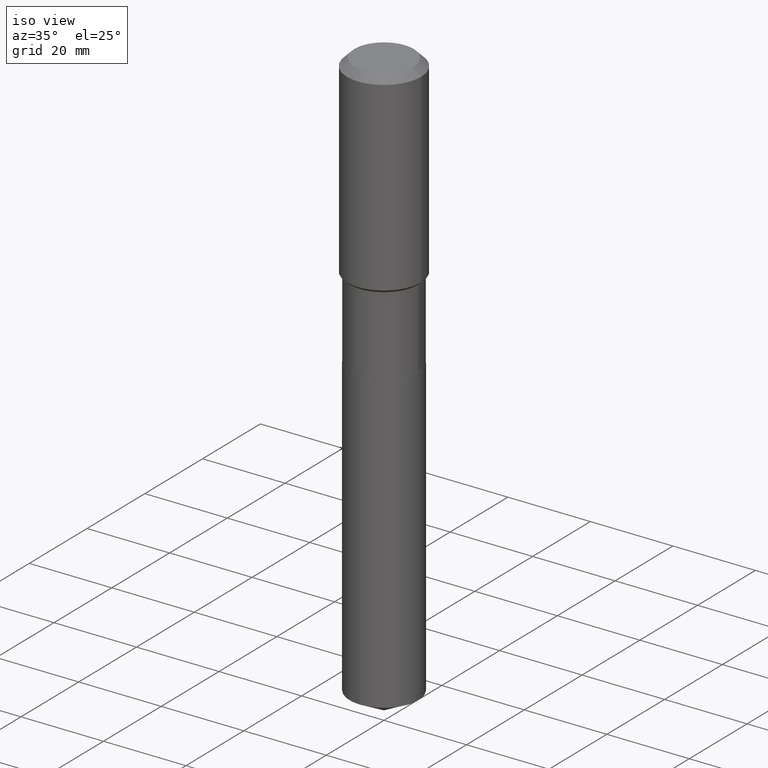
[diagram: clean part render]
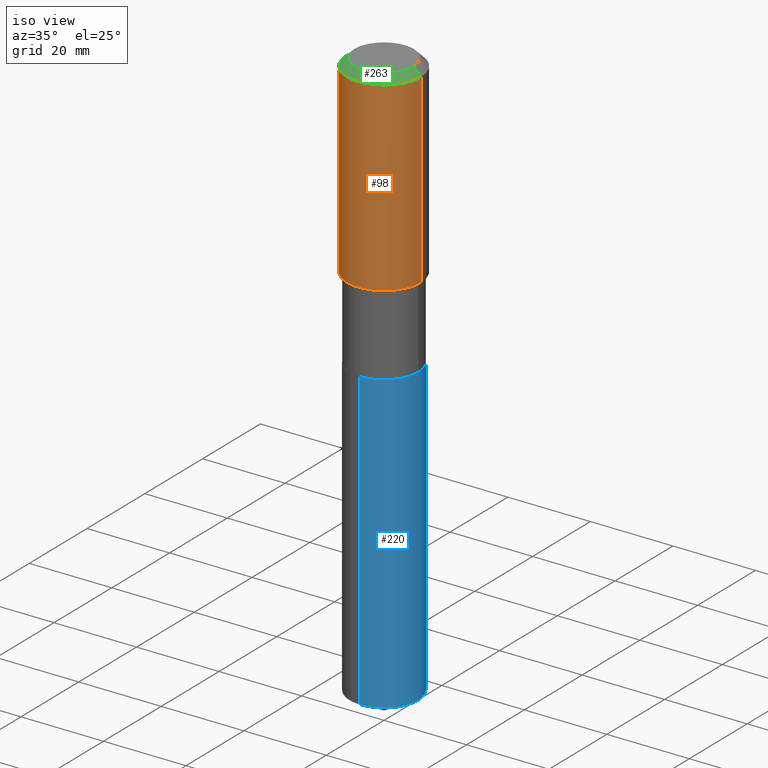
[diagram: same view with three faces highlighted in distinct colors, each labeled with its STEP entity id]
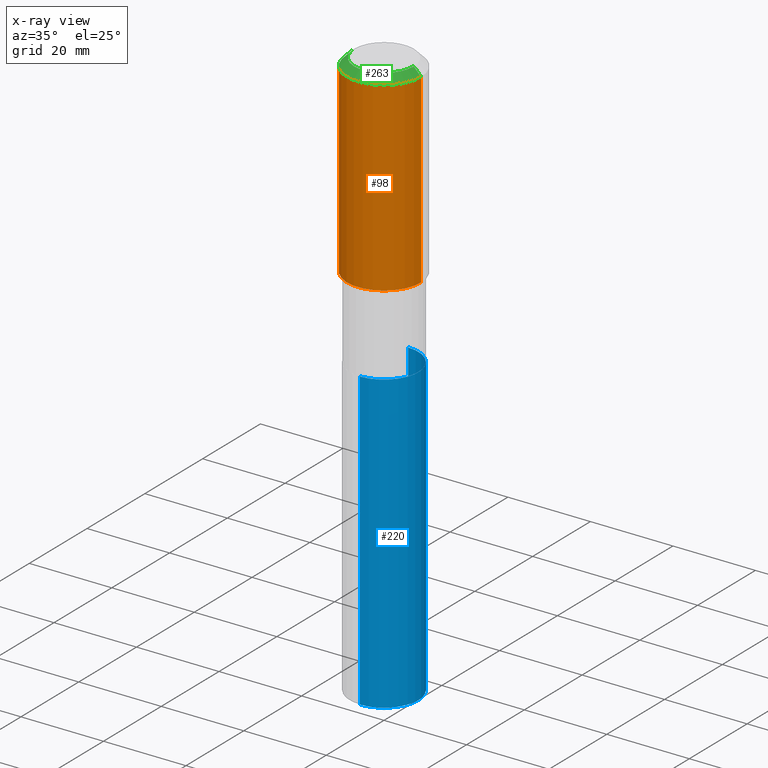
[diagram: x-ray of the same camera — body ghosted, the three highlighted faces saturated]
A machine part, iso view with three faces highlighted in distinct colors.
The next image is the same camera in x-ray (body ghosted, the three faces saturated) — at least one of them is partly hidden behind the body in this view.
Their STEP definitions:

[orange] entity #98 — the highlighted cylindrical surface (partial cylindrical patch) has radius 9.0005 mm, axis along (-0, 0, 1).
#33 = CARTESIAN_POINT ( 'NONE',  ( 1.733103742943417062E-30, -2.474412824838152853E-16, -0.07087000000000043265 ) ) ;
#45 = ORIENTED_EDGE ( 'NONE', *, *, #419, .F. ) ;
#69 = AXIS2_PLACEMENT_3D ( 'NONE', #33, #257, #95 ) ;
#79 = EDGE_CURVE ( 'NONE', #209, #309, #166, .T. ) ;
#82 = AXIS2_PLACEMENT_3D ( 'NONE', #321, #292, #483 ) ;
#95 = DIRECTION ( 'NONE',  ( 1.000000000000000000, -6.982962677686266711E-15, 0.000000000000000000 ) ) ;
#98 = ADVANCED_FACE ( 'NONE', ( #113 ), #301, .T. ) ;
#107 = DIRECTION ( 'NONE',  ( 1.000000000000000000, -6.982962677686265922E-15, 4.876176775795935793E-29 ) ) ;
#113 = FACE_OUTER_BOUND ( 'NONE', #277, .T. ) ;
#156 = CIRCLE ( 'NONE', #69, 0.3543499999999999983 ) ;
#158 = VERTEX_POINT ( 'NONE', #488 ) ;
#166 = CIRCLE ( 'NONE', #82, 0.3543500000000002204 ) ;
#171 = VERTEX_POINT ( 'NONE', #351 ) ;
#197 = ORIENTED_EDGE ( 'NONE', *, *, #79, .T. ) ;
#208 = DIRECTION ( 'NONE',  ( -2.445468806185136877E-29, 3.491481338843145188E-15, 1.000000000000000000 ) ) ;
#209 = VERTEX_POINT ( 'NONE', #234 ) ;
#234 = CARTESIAN_POINT ( 'NONE',  ( -0.3543500000000002204, -3.921705423129438442E-15, -1.844349999999999712 ) ) ;
#239 = ORIENTED_EDGE ( 'NONE', *, *, #288, .T. ) ;
#245 = VECTOR ( 'NONE', #251, 39.37007874015748143 ) ;
#248 = CARTESIAN_POINT ( 'NONE',  ( 0.3543500000000002204, -8.913926432133485288E-15, -1.844349999999999712 ) ) ;
#251 = DIRECTION ( 'NONE',  ( -2.445468806185136877E-29, 3.491481338843145188E-15, 1.000000000000000000 ) ) ;
#257 = DIRECTION ( 'NONE',  ( -2.445468806185136597E-29, 3.491481338843145583E-15, 1.000000000000000000 ) ) ;
#258 = ORIENTED_EDGE ( 'NONE', *, *, #353, .F. ) ;
#260 = DIRECTION ( 'NONE',  ( -2.445468806185136597E-29, 3.491481338843145583E-15, 1.000000000000000000 ) ) ;
#276 = LINE ( 'NONE', #391, #403 ) ;
#277 = EDGE_LOOP ( 'NONE', ( #45, #197, #239, #258 ) ) ;
#288 = EDGE_CURVE ( 'NONE', #309, #171, #276, .T. ) ;
#292 = DIRECTION ( 'NONE',  ( -2.445468806185136597E-29, 3.491481338843145583E-15, 1.000000000000000000 ) ) ;
#301 = CYLINDRICAL_SURFACE ( 'NONE', #336, 0.3543500000000001648 ) ;
#302 = CARTESIAN_POINT ( 'NONE',  ( 0.000000000000000000, 0.000000000000000000, 0.000000000000000000 ) ) ;
#309 = VERTEX_POINT ( 'NONE', #248 ) ;
#321 = CARTESIAN_POINT ( 'NONE',  ( 4.510300392687555505E-29, -6.439513607295354622E-15, -1.844349999999999712 ) ) ;
#322 = LINE ( 'NONE', #440, #245 ) ;
#336 = AXIS2_PLACEMENT_3D ( 'NONE', #302, #260, #107 ) ;
#351 = CARTESIAN_POINT ( 'NONE',  ( 0.3543499999999999983, -2.721854107321943733E-15, -0.07087000000000043265 ) ) ;
#353 = EDGE_CURVE ( 'NONE', #158, #171, #156, .T. ) ;
#391 = CARTESIAN_POINT ( 'NONE',  ( 0.3543500000000001648, -2.474412824838129483E-15, 1.727873240503290590E-29 ) ) ;
#403 = VECTOR ( 'NONE', #208, 39.37007874015748143 ) ;
#419 = EDGE_CURVE ( 'NONE', #209, #158, #322, .T. ) ;
#440 = CARTESIAN_POINT ( 'NONE',  ( -0.3543500000000001648, 2.517808184165916180E-15, -1.743024649231826627E-29 ) ) ;
#483 = DIRECTION ( 'NONE',  ( 1.000000000000000000, -6.982962677686266711E-15, 0.000000000000000000 ) ) ;
#488 = CARTESIAN_POINT ( 'NONE',  ( -0.3543499999999999983, -8.256692607236688475E-16, -0.07087000000000043265 ) ) ;

[blue] entity #220 — the highlighted cylindrical surface (partial cylindrical patch) has radius 8.3337 mm, axis along (-0, 0, 1).
#8 = ORIENTED_EDGE ( 'NONE', *, *, #477, .T. ) ;
#52 = VECTOR ( 'NONE', #139, 39.37007874015748143 ) ;
#53 = CYLINDRICAL_SURFACE ( 'NONE', #221, 0.3281000000000000028 ) ;
#62 = DIRECTION ( 'NONE',  ( -2.445340400284401778E-29, 3.491665223401407561E-15, 1.000000000000000000 ) ) ;
#86 = DIRECTION ( 'NONE',  ( -6.982962677686265133E-15, -1.000000000000000000, 3.330506545156066257E-15 ) ) ;
#123 = EDGE_CURVE ( 'NONE', #268, #380, #418, .T. ) ;
#124 = ORIENTED_EDGE ( 'NONE', *, *, #290, .F. ) ;
#128 = CARTESIAN_POINT ( 'NONE',  ( -2.291110054548730797E-15, -0.3281000000000190986, -5.455546135471868396 ) ) ;
#137 = VERTEX_POINT ( 'NONE', #450 ) ;
#139 = DIRECTION ( 'NONE',  ( -2.445340400284401778E-29, 3.491665223401407561E-15, 1.000000000000000000 ) ) ;
#163 = DIRECTION ( 'NONE',  ( -2.445340400284401778E-29, 3.491665223401407956E-15, 1.000000000000000000 ) ) ;
#169 = VECTOR ( 'NONE', #62, 39.37007874015748143 ) ;
#184 = AXIS2_PLACEMENT_3D ( 'NONE', #344, #163, #307 ) ;
#192 = CARTESIAN_POINT ( 'NONE',  ( 1.334100446185541204E-28, -1.904845798214671916E-14, -5.455546135471870173 ) ) ;
#196 = FACE_OUTER_BOUND ( 'NONE', #289, .T. ) ;
#205 = DIRECTION ( 'NONE',  ( -2.445340400284401778E-29, 3.491665223401407956E-15, 1.000000000000000000 ) ) ;
#220 = ADVANCED_FACE ( 'NONE', ( #196 ), #53, .T. ) ;
#221 = AXIS2_PLACEMENT_3D ( 'NONE', #387, #205, #86 ) ;
#230 = CIRCLE ( 'NONE', #184, 0.3281000000000000028 ) ;
#268 = VERTEX_POINT ( 'NONE', #128 ) ;
#282 = CARTESIAN_POINT ( 'NONE',  ( 2.331290716029022047E-15, 0.3280999999999810179, -5.455546135471871061 ) ) ;
#287 = LINE ( 'NONE', #434, #169 ) ;
#289 = EDGE_LOOP ( 'NONE', ( #432, #8, #124, #427 ) ) ;
#290 = EDGE_CURVE ( 'NONE', #137, #383, #230, .T. ) ;
#307 = DIRECTION ( 'NONE',  ( -6.982962677686265133E-15, -1.000000000000000000, 3.330506545156066257E-15 ) ) ;
#320 = LINE ( 'NONE', #363, #52 ) ;
#339 = DIRECTION ( 'NONE',  ( -6.982962677686265133E-15, -1.000000000000000000, 3.330506545156066257E-15 ) ) ;
#344 = CARTESIAN_POINT ( 'NONE',  ( 6.419844709997220015E-29, -9.165836810731023636E-15, -2.625199999999999534 ) ) ;
#363 = CARTESIAN_POINT ( 'NONE',  ( -2.291110054548799427E-15, -0.3281000000000091066, -2.625199999999998646 ) ) ;
#378 = DIRECTION ( 'NONE',  ( -2.445340400284401778E-29, 3.491665223401407956E-15, 1.000000000000000000 ) ) ;
#380 = VERTEX_POINT ( 'NONE', #282 ) ;
#383 = VERTEX_POINT ( 'NONE', #431 ) ;
#384 = EDGE_CURVE ( 'NONE', #268, #137, #320, .T. ) ;
#387 = CARTESIAN_POINT ( 'NONE',  ( 6.419844709997220015E-29, -9.165836810731023636E-15, -2.625199999999999534 ) ) ;
#418 = CIRCLE ( 'NONE', #490, 0.3281000000000000028 ) ;
#427 = ORIENTED_EDGE ( 'NONE', *, *, #384, .F. ) ;
#431 = CARTESIAN_POINT ( 'NONE',  ( 2.331290716029020864E-15, 0.3280999999999907324, -2.625200000000000866 ) ) ;
#432 = ORIENTED_EDGE ( 'NONE', *, *, #123, .T. ) ;
#434 = CARTESIAN_POINT ( 'NONE',  ( 2.331290716028952233E-15, 0.3280999999999908434, -2.625200000000000866 ) ) ;
#450 = CARTESIAN_POINT ( 'NONE',  ( -2.291110054548799427E-15, -0.3281000000000091066, -2.625199999999998646 ) ) ;
#477 = EDGE_CURVE ( 'NONE', #380, #383, #287, .T. ) ;
#490 = AXIS2_PLACEMENT_3D ( 'NONE', #192, #378, #339 ) ;

[green] entity #263 — the highlighted conical surface has half-angle 45 deg.
#20 = LINE ( 'NONE', #326, #463 ) ;
#28 = DIRECTION ( 'NONE',  ( 0.7071067811865453523, -7.319954787623248157E-15, -0.7071067811865496822 ) ) ;
#33 = CARTESIAN_POINT ( 'NONE',  ( 1.733103742943417062E-30, -2.474412824838152853E-16, -0.07087000000000043265 ) ) ;
#42 = VERTEX_POINT ( 'NONE', #215 ) ;
#44 = CARTESIAN_POINT ( 'NONE',  ( 1.733103742943417062E-30, -2.474412824838152853E-16, -0.07087000000000043265 ) ) ;
#47 = DIRECTION ( 'NONE',  ( 2.445468806185136597E-29, -3.491481338843145583E-15, -1.000000000000000000 ) ) ;
#50 = AXIS2_PLACEMENT_3D ( 'NONE', #44, #47, #199 ) ;
#59 = VERTEX_POINT ( 'NONE', #331 ) ;
#69 = AXIS2_PLACEMENT_3D ( 'NONE', #33, #257, #95 ) ;
#83 = DIRECTION ( 'NONE',  ( -2.445468806185136597E-29, 3.491481338843145583E-15, 1.000000000000000000 ) ) ;
#95 = DIRECTION ( 'NONE',  ( 1.000000000000000000, -6.982962677686266711E-15, 0.000000000000000000 ) ) ;
#129 = ORIENTED_EDGE ( 'NONE', *, *, #353, .T. ) ;
#134 = LINE ( 'NONE', #393, #375 ) ;
#156 = CIRCLE ( 'NONE', #69, 0.3543499999999999983 ) ;
#158 = VERTEX_POINT ( 'NONE', #488 ) ;
#167 = CIRCLE ( 'NONE', #481, 0.2834800000000000098 ) ;
#170 = DIRECTION ( 'NONE',  ( 1.000000000000000000, -6.982962677686266711E-15, 4.876249319814053138E-29 ) ) ;
#171 = VERTEX_POINT ( 'NONE', #351 ) ;
#189 = ORIENTED_EDGE ( 'NONE', *, *, #250, .F. ) ;
#199 = DIRECTION ( 'NONE',  ( -1.000000000000000000, 6.982962677686266711E-15, 0.000000000000000000 ) ) ;
#215 = CARTESIAN_POINT ( 'NONE',  ( 0.2834800000000000098, -2.311636360201216027E-15, 3.860086710927458874E-18 ) ) ;
#246 = DIRECTION ( 'NONE',  ( -0.7071067811865453523, 2.468850131082234184E-15, -0.7071067811865496822 ) ) ;
#250 = EDGE_CURVE ( 'NONE', #59, #42, #167, .T. ) ;
#257 = DIRECTION ( 'NONE',  ( -2.445468806185136597E-29, 3.491481338843145583E-15, 1.000000000000000000 ) ) ;
#263 = ADVANCED_FACE ( 'NONE', ( #382 ), #340, .T. ) ;
#326 = CARTESIAN_POINT ( 'NONE',  ( -0.3543499999999999983, 2.226971542354313655E-15, -0.07087000000000043265 ) ) ;
#331 = CARTESIAN_POINT ( 'NONE',  ( -0.2834800000000000098, 2.103250901112408108E-15, 3.860086710898179346E-18 ) ) ;
#340 = CONICAL_SURFACE ( 'NONE', #50, 0.3543499999999999983, 0.7853981633974452814 ) ;
#351 = CARTESIAN_POINT ( 'NONE',  ( 0.3543499999999999983, -2.721854107321943733E-15, -0.07087000000000043265 ) ) ;
#353 = EDGE_CURVE ( 'NONE', #158, #171, #156, .T. ) ;
#355 = ORIENTED_EDGE ( 'NONE', *, *, #411, .T. ) ;
#375 = VECTOR ( 'NONE', #28, 39.37007874015748143 ) ;
#377 = EDGE_CURVE ( 'NONE', #42, #171, #134, .T. ) ;
#382 = FACE_OUTER_BOUND ( 'NONE', #392, .T. ) ;
#389 = ORIENTED_EDGE ( 'NONE', *, *, #377, .F. ) ;
#392 = EDGE_LOOP ( 'NONE', ( #389, #189, #355, #129 ) ) ;
#393 = CARTESIAN_POINT ( 'NONE',  ( 0.3543499999999999983, -2.678458747994157430E-15, -0.07087000000000043265 ) ) ;
#411 = EDGE_CURVE ( 'NONE', #59, #158, #20, .T. ) ;
#417 = CARTESIAN_POINT ( 'NONE',  ( -9.439721640706191963E-47, 1.347742071746725396E-32, 3.860086710912455110E-18 ) ) ;
#463 = VECTOR ( 'NONE', #246, 39.37007874015748143 ) ;
#481 = AXIS2_PLACEMENT_3D ( 'NONE', #417, #83, #170 ) ;
#488 = CARTESIAN_POINT ( 'NONE',  ( -0.3543499999999999983, -8.256692607236688475E-16, -0.07087000000000043265 ) ) ;